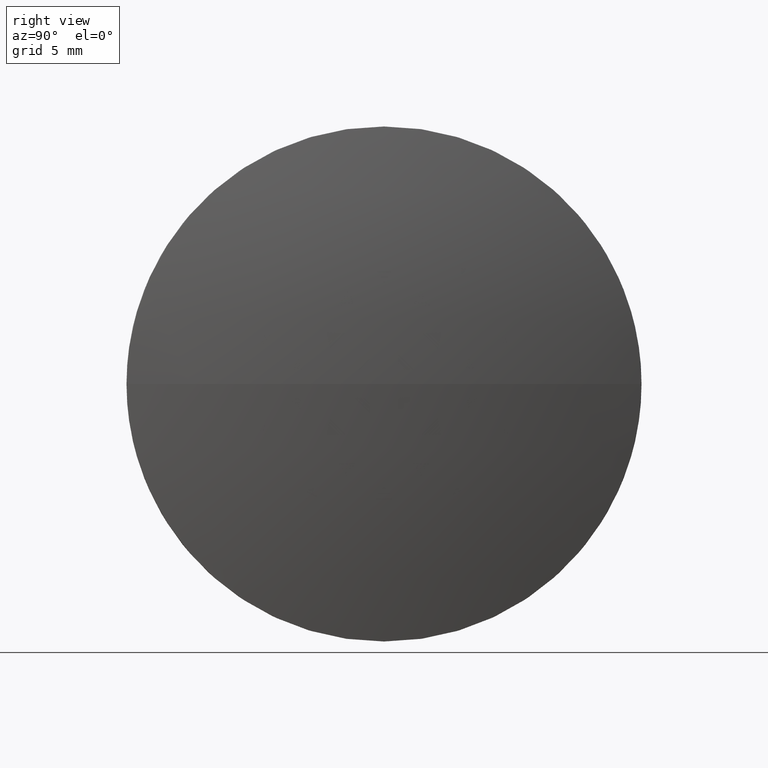
[diagram: clean part render]
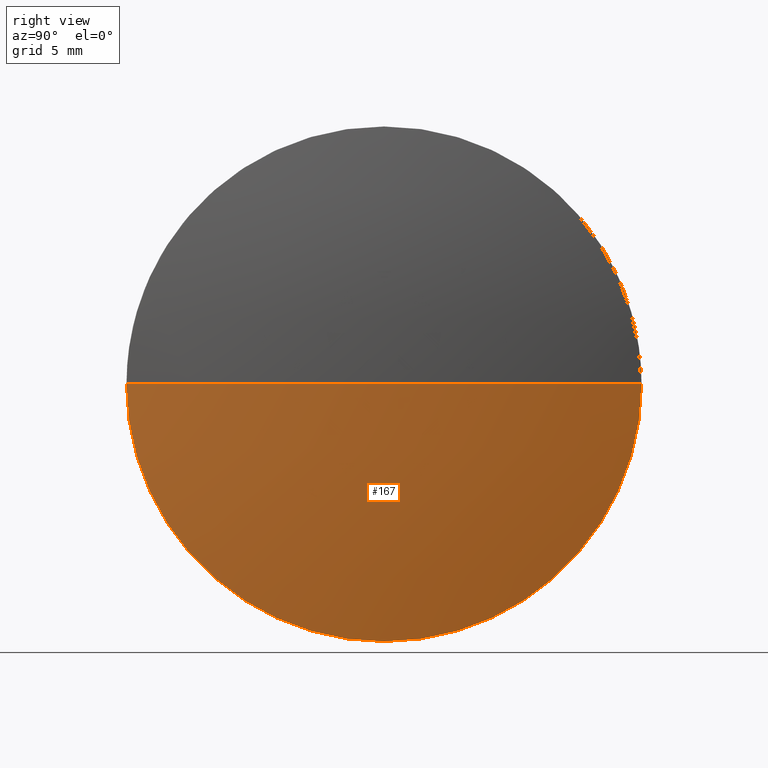
[diagram: same view with one face highlighted and labeled with its STEP entity id]
A machine part, right view. The second image highlights one B-rep face of the part: STEP entity #167.
In plain terms, the highlighted spherical surface has radius 62.6846 mm.
Its self-contained STEP definition (entity closure, byte-faithful):
#3 = ORIENTED_EDGE ( 'NONE', *, *, #14, .F. ) ;
#7 = DIRECTION ( 'NONE',  ( 1.000000000000000000, 0.0000000000000000000, 0.0000000000000000000 ) ) ;
#14 = EDGE_CURVE ( 'NONE', #58, #159, #184, .T. ) ;
#16 = ORIENTED_EDGE ( 'NONE', *, *, #175, .F. ) ;
#19 = CARTESIAN_POINT ( 'NONE',  ( 330.4834337643415600, 40.44166342956027200, 0.0000000000000000000 ) ) ;
#30 = SPHERICAL_SURFACE ( 'NONE', #149, 62.68461538461556200 ) ;
#41 = AXIS2_PLACEMENT_3D ( 'NONE', #180, #62, #132 ) ;
#45 = CARTESIAN_POINT ( 'NONE',  ( 391.8680491489570800, 40.44166342956046400, 0.0000000000000000000 ) ) ;
#48 = EDGE_CURVE ( 'NONE', #164, #58, #56, .T. ) ;
#56 = CIRCLE ( 'NONE', #72, 12.70000000000000300 ) ;
#58 = VERTEX_POINT ( 'NONE', #102 ) ;
#62 = DIRECTION ( 'NONE',  ( -1.000000000000000000, -0.0000000000000000000, -0.0000000000000000000 ) ) ;
#65 = CIRCLE ( 'NONE', #68, 62.68461538461556200 ) ;
#68 = AXIS2_PLACEMENT_3D ( 'NONE', #87, #76, #7 ) ;
#72 = AXIS2_PLACEMENT_3D ( 'NONE', #45, #160, #103 ) ;
#73 = ORIENTED_EDGE ( 'NONE', *, *, #133, .T. ) ;
#75 = DIRECTION ( 'NONE',  ( -0.0000000000000000000, 0.0000000000000000000, -1.000000000000000000 ) ) ;
#76 = DIRECTION ( 'NONE',  ( -0.0000000000000000000, 0.0000000000000000000, 1.000000000000000000 ) ) ;
#79 = ORIENTED_EDGE ( 'NONE', *, *, #48, .F. ) ;
#87 = CARTESIAN_POINT ( 'NONE',  ( 330.4834337643415600, 40.44166342956027200, 0.0000000000000000000 ) ) ;
#90 = DIRECTION ( 'NONE',  ( 0.0000000000000000000, 1.000000000000000000, 1.224646799147353200E-016 ) ) ;
#96 = AXIS2_PLACEMENT_3D ( 'NONE', #134, #145, #90 ) ;
#102 = CARTESIAN_POINT ( 'NONE',  ( 391.8680491489570800, 40.44166342956046400, -12.70000000000000300 ) ) ;
#103 = DIRECTION ( 'NONE',  ( 0.0000000000000000000, 0.0000000000000000000, 1.000000000000000000 ) ) ;
#107 = CARTESIAN_POINT ( 'NONE',  ( 391.8680491489570800, 53.14166342956043100, 0.0000000000000000000 ) ) ;
#115 = CIRCLE ( 'NONE', #96, 62.68461538461556200 ) ;
#116 = VERTEX_POINT ( 'NONE', #183 ) ;
#122 = EDGE_LOOP ( 'NONE', ( #16, #73, #3, #79 ) ) ;
#123 = DIRECTION ( 'NONE',  ( 0.0000000000000000000, 1.000000000000000000, 0.0000000000000000000 ) ) ;
#132 = DIRECTION ( 'NONE',  ( 0.0000000000000000000, 0.0000000000000000000, 1.000000000000000000 ) ) ;
#133 = EDGE_CURVE ( 'NONE', #116, #159, #115, .T. ) ;
#134 = CARTESIAN_POINT ( 'NONE',  ( 330.4834337643415600, 40.44166342956027200, 0.0000000000000000000 ) ) ;
#144 = FACE_OUTER_BOUND ( 'NONE', #122, .T. ) ;
#145 = DIRECTION ( 'NONE',  ( 0.0000000000000000000, 1.224646799147353200E-016, -1.000000000000000000 ) ) ;
#146 = CARTESIAN_POINT ( 'NONE',  ( 391.8680491489570800, 27.74166342956030500, -1.555301434917134300E-015 ) ) ;
#149 = AXIS2_PLACEMENT_3D ( 'NONE', #19, #75, #123 ) ;
#159 = VERTEX_POINT ( 'NONE', #146 ) ;
#160 = DIRECTION ( 'NONE',  ( -1.000000000000000000, -0.0000000000000000000, -0.0000000000000000000 ) ) ;
#164 = VERTEX_POINT ( 'NONE', #107 ) ;
#167 = ADVANCED_FACE ( 'NONE', ( #144 ), #30, .T. ) ;
#175 = EDGE_CURVE ( 'NONE', #116, #164, #65, .T. ) ;
#180 = CARTESIAN_POINT ( 'NONE',  ( 391.8680491489570800, 40.44166342956046400, 0.0000000000000000000 ) ) ;
#183 = CARTESIAN_POINT ( 'NONE',  ( 393.1680491489571000, 40.44166342956027900, 0.0000000000000000000 ) ) ;
#184 = CIRCLE ( 'NONE', #41, 12.70000000000000300 ) ;